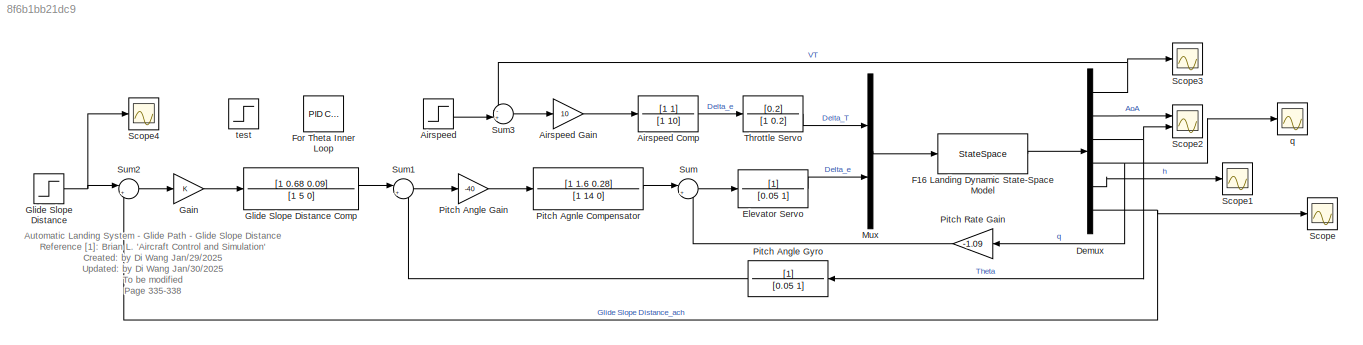
MODEL slx_8f6b1bb21dc9
KIND model
CONFIG AbsTol = auto
CONFIG EnableMultiTasking = off
CONFIG FixedStep = auto
CONFIG MaxStep = auto
CONFIG MinStep = auto
CONFIG RelTol = 1e-3
CONFIG SampleTimeConstraint = Unconstrained
CONFIG Solver = VariableStepAuto
CONFIG SolverName = VariableStepAuto
CONFIG StartTime = 0.0
CONFIG StopTime = 20
BLOCK [Step] Airspeed
  After = 250
  SampleTime = 0
BLOCK [TransferFcn] Airspeed Comp
  Denominator = [1 10]
  Numerator = [1 1]
BLOCK [Gain] Airspeed Gain
  Gain = 10
  OutDataTypeStr = Inherit: Inherit via internal rule
  ParamDataTypeStr = Inherit: Inherit via internal rule
  SaturateOnIntegerOverflow = off
BLOCK [Demux] Demux
  DisplayOption = bar
  Outputs = 6
  Ports = [1, 6]
BLOCK [TransferFcn] Elevator Servo
  Denominator = [0.05 1]
BLOCK [StateSpace] F16 Landing Dynamic State-Space Model
  A = [-0.03858 18.984 -32.139 0 1.3233e-4 0;\n     -0.001028 -0.63253 0.0056129 1 3.7553e-6 0;\n     0 0 0 1 0 0;\n     7.8601e-5 -0.75905 -0.00079341 -0.5183 -3.0808e-7 0;\n     -0.04362 -249.76 249.76 0 0 0;\n     0 -250 250 0 0 0]
  B = [10.1 0; -1.5446e-4 0; 0 0; 0.024656 -0.01077; 0 0; 0 0]
  C = [1 0 0 0 0 0; 0 57.296 0 0 0 0; 0 0 57.296 0 0 0; 0 0 0 57.296 0 0;0 0 0 0 1 0;0 0 0 0 0 1]
  D = zeros(6,2)
  InitialCondition = 0
  Ports = [1, 1]
BLOCK [Reference] For Theta Inner Loop  REF=simulink/Continuous/PID Controller
  Ports = [1, 1]
  SourceBlock = simulink/Continuous/PID Controller
  SourceProductBaseCode = SL
  SourceProductName = Simulink
  SourceType = PID 1dof
BLOCK [Gain] Gain
  OutDataTypeStr = Inherit: Inherit via internal rule
  ParamDataTypeStr = Inherit: Inherit via internal rule
  SaturateOnIntegerOverflow = off
BLOCK [Step] Glide Slope Distance
  After = 0
  Before = -1
  SampleTime = 0
BLOCK [TransferFcn] Glide Slope Distance Comp
  Denominator = [1 5 0]
  Numerator = [1 0.68 0.09]
BLOCK [Mux] Mux
  DisplayOption = bar
  Inputs = 2
  Ports = [2, 1]
BLOCK [TransferFcn] Pitch Agnle Compensator
  Denominator = [1 14 0]
  Numerator = [1 1.6 0.28]
BLOCK [Gain] Pitch Angle Gain
  Gain = -40
  OutDataTypeStr = Inherit: Inherit via internal rule
  ParamDataTypeStr = Inherit: Inherit via internal rule
  SaturateOnIntegerOverflow = off
BLOCK [TransferFcn] Pitch Angle Gyro
  Denominator = [0.05 1]
BLOCK [Gain] Pitch Rate Gain
  Gain = -1.09
  OutDataTypeStr = Inherit: Inherit via internal rule
  ParamDataTypeStr = Inherit: Inherit via internal rule
  SaturateOnIntegerOverflow = off
BLOCK [Scope] Scope
  Floating = off
  NumInputPorts = 1
  Ports = [1]
  ScopeSpecificationString = Simulink.scopes.TimeScopeBlockCfg('CurrentConfiguration', extmgr.ConfigurationSet(extmgr.Configuration('Core','General UI',true),extmgr.Configuration('Core','Source UI',true),extmgr.Configuration('Sources','WiredSimulink',true),extmgr.Configuration('Visuals','Time Domain',true,'SerializedDisplays',{struct('MinYLimReal','-23.7899','MaxYLimReal','205.30578','YLabelReal','','MinYLimMag','0.00000','Ma...<+1352ch>
BLOCK [Scope] Scope1
  Floating = off
  NumInputPorts = 1
  Ports = [1]
  ScopeSpecificationString = Simulink.scopes.TimeScopeBlockCfg('CurrentConfiguration', extmgr.ConfigurationSet(extmgr.Configuration('Core','General UI',true),extmgr.Configuration('Core','Source UI',true),extmgr.Configuration('Sources','WiredSimulink',true,'DataLoggingVariableName','ScopeData1'),extmgr.Configuration('Visuals','Time Domain',true,'SerializedDisplays',{struct('MinYLimReal','-249.2051','MaxYLimReal','177.03524','Y...<+1370ch>
BLOCK [Scope] Scope2
  Floating = off
  NumInputPorts = 2
  Ports = [2]
  ScopeSpecificationString = Simulink.scopes.TimeScopeBlockCfg('CurrentConfiguration', extmgr.ConfigurationSet(extmgr.Configuration('Core','General UI',true),extmgr.Configuration('Core','Source UI',true),extmgr.Configuration('Sources','WiredSimulink',true,'DataLoggingVariableName','ScopeData2'),extmgr.Configuration('Visuals','Time Domain',true,'SerializedDisplays',{struct('MinYLimReal','-42.6908','MaxYLimReal','13.72317','YLa...<+1482ch>
BLOCK [Scope] Scope3
  Floating = off
  NumInputPorts = 1
  Ports = [1]
  ScopeSpecificationString = Simulink.scopes.TimeScopeBlockCfg('CurrentConfiguration', extmgr.ConfigurationSet(extmgr.Configuration('Core','General UI',true),extmgr.Configuration('Core','Source UI',true),extmgr.Configuration('Sources','WiredSimulink',true,'DataLoggingVariableName','ScopeData3'),extmgr.Configuration('Visuals','Time Domain',true,'SerializedDisplays',{struct('MinYLimReal','-36.55374','MaxYLimReal','328.98367','Y...<+1371ch>
BLOCK [Scope] Scope4
  Floating = off
  NumInputPorts = 1
  Ports = [1]
  ScopeSpecificationString = Simulink.scopes.TimeScopeBlockCfg('CurrentConfiguration', extmgr.ConfigurationSet(extmgr.Configuration('Core','General UI',true),extmgr.Configuration('Core','Source UI',true),extmgr.Configuration('Sources','WiredSimulink',true,'DataLoggingVariableName','ScopeData1'),extmgr.Configuration('Visuals','Time Domain',true,'SerializedDisplays',{struct('MinYLimReal','-1.125','MaxYLimReal','0.125','YLabelRe...<+1367ch>
BLOCK [Sum] Sum
  IconShape = round
  InputSameDT = off
  Inputs = |+-
  OutDataTypeStr = Inherit: Inherit via internal rule
  Ports = [2, 1]
  SaturateOnIntegerOverflow = off
BLOCK [Sum] Sum1
  IconShape = round
  InputSameDT = off
  Inputs = |+-
  OutDataTypeStr = Inherit: Inherit via internal rule
  Ports = [2, 1]
  SaturateOnIntegerOverflow = off
BLOCK [Sum] Sum2
  IconShape = round
  InputSameDT = off
  Inputs = |+-
  OutDataTypeStr = Inherit: Inherit via internal rule
  Ports = [2, 1]
  SaturateOnIntegerOverflow = off
BLOCK [Sum] Sum3
  IconShape = round
  InputSameDT = off
  Inputs = -+|
  OutDataTypeStr = Inherit: Inherit via internal rule
  Ports = [2, 1]
  SaturateOnIntegerOverflow = off
BLOCK [TransferFcn] Throttle Servo
  Denominator = [1 0.2]
  Numerator = [0.2]
BLOCK [Scope] q
  Floating = off
  NumInputPorts = 1
  Ports = [1]
  ScopeSpecificationString = Simulink.scopes.TimeScopeBlockCfg('CurrentConfiguration', extmgr.ConfigurationSet(extmgr.Configuration('Core','General UI',true),extmgr.Configuration('Core','Source UI',true),extmgr.Configuration('Sources','WiredSimulink',true,'DataLoggingVariableName','ScopeData2'),extmgr.Configuration('Visuals','Time Domain',true,'SerializedDisplays',{struct('MinYLimReal','-28.9459','MaxYLimReal','19.99434','YLa...<+1362ch>
BLOCK [Step] test
  SampleTime = 0
ANNOTATION (root): Automatic Landing System - Glide Path - Glide Slope Distance Reference [1]: Brian L. 'Aircraft Control and Simulation' Created: by Di Wang Jan/29/2025 Updated: by Di Wang Jan/30/2025 To be modified Page 335-338
LINE Airspeed Comp:1 -> Throttle Servo:1
LINE Airspeed Gain:1 -> Airspeed Comp:1
LINE Airspeed:1 -> Sum3:2
NET Demux:1 -> Scope3:1, Sum3:1
LINE Demux:2 -> Scope2:1
NET Demux:3 -> Pitch Angle Gyro:1, Scope2:2
NET Demux:4 -> Pitch Rate Gain:1, q:1
LINE Demux:5 -> Scope1:1
NET Demux:6 -> Scope:1, Sum2:2
LINE Elevator Servo:1 -> Mux:2
LINE F16 Landing Dynamic State-Space Model:1 -> Demux:1
LINE Gain:1 -> Glide Slope Distance Comp:1
LINE Glide Slope Distance Comp:1 -> Sum1:1
NET Glide Slope Distance:1 -> Scope4:1, Sum2:1
LINE Mux:1 -> F16 Landing Dynamic State-Space Model:1
LINE Pitch Agnle Compensator:1 -> Sum:1
LINE Pitch Angle Gain:1 -> Pitch Agnle Compensator:1
LINE Pitch Angle Gyro:1 -> Sum1:2
LINE Pitch Rate Gain:1 -> Sum:2
LINE Sum1:1 -> Pitch Angle Gain:1
LINE Sum2:1 -> Gain:1
LINE Sum3:1 -> Airspeed Gain:1
LINE Sum:1 -> Elevator Servo:1
LINE Throttle Servo:1 -> Mux:1
note: NET lines group one-source signal fan-out (src -> all destinations, sorted); 1:1 wires keep LINE
